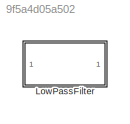
MODEL slx_9f5a4d05a502
KIND library
CONFIG AbsTol = auto
CONFIG EnableMultiTasking = off
CONFIG FixedStep = auto
CONFIG MaxStep = auto
CONFIG MinStep = auto
CONFIG RelTol = 1e-3
CONFIG SampleTimeConstraint = Unconstrained
CONFIG SolverName = VariableStepAuto
CONFIG StartTime = 0.0
CONFIG StopTime = 10.0
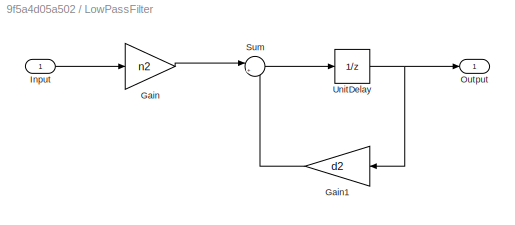
BLOCK [SubSystem] LowPassFilter
BLOCK [Gain] LowPassFilter/Gain
  Gain = n2
BLOCK [Gain] LowPassFilter/Gain1
  Gain = d2
BLOCK [Inport] LowPassFilter/Input
BLOCK [Outport] LowPassFilter/Output
BLOCK [Sum] LowPassFilter/Sum
  Inputs = |++
BLOCK [UnitDelay] LowPassFilter/UnitDelay
  HasFrameUpgradeWarning = on
  SampleTime = ts
LINE LowPassFilter/Gain1:1 -> LowPassFilter/Sum:2
LINE LowPassFilter/Gain:1 -> LowPassFilter/Sum:1
LINE LowPassFilter/Input:1 -> LowPassFilter/Gain:1
LINE LowPassFilter/Sum:1 -> LowPassFilter/UnitDelay:1
NET LowPassFilter/UnitDelay:1 -> LowPassFilter/Gain1:1, LowPassFilter/Output:1
note: NET lines group one-source signal fan-out (src -> all destinations, sorted); 1:1 wires keep LINE
